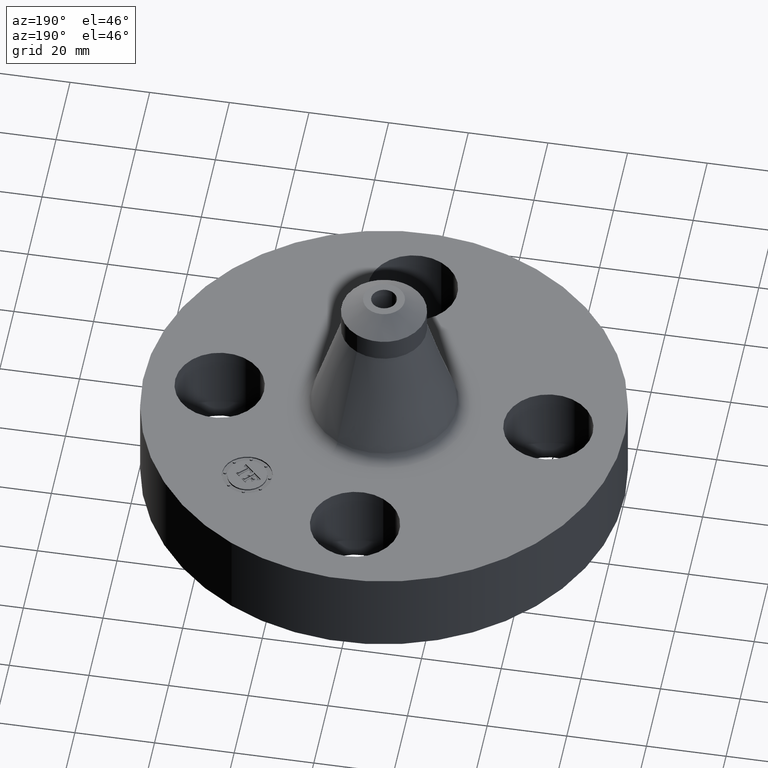
[diagram: clean part render]
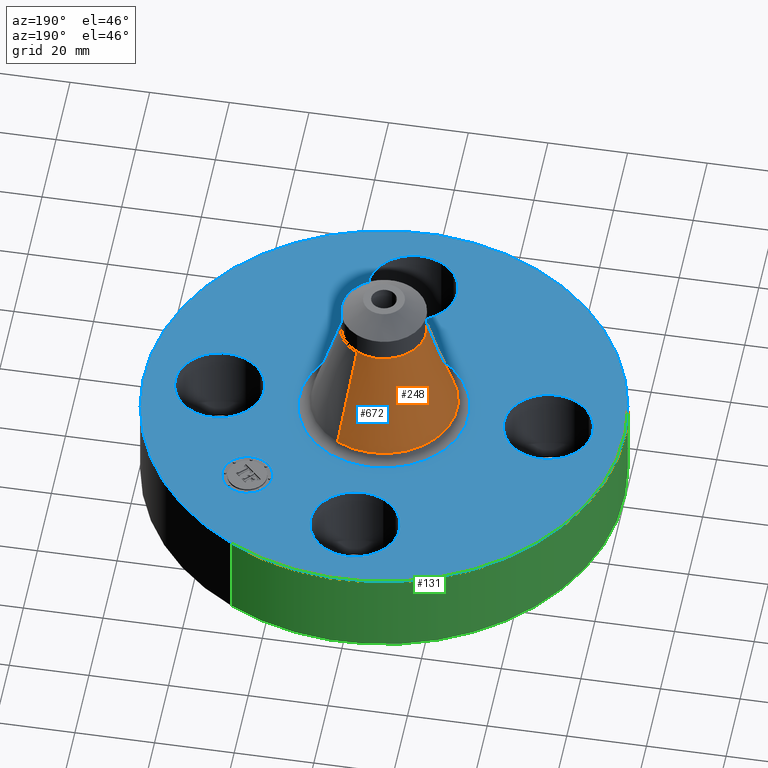
[diagram: same view with three faces highlighted in distinct colors, each labeled with its STEP entity id]
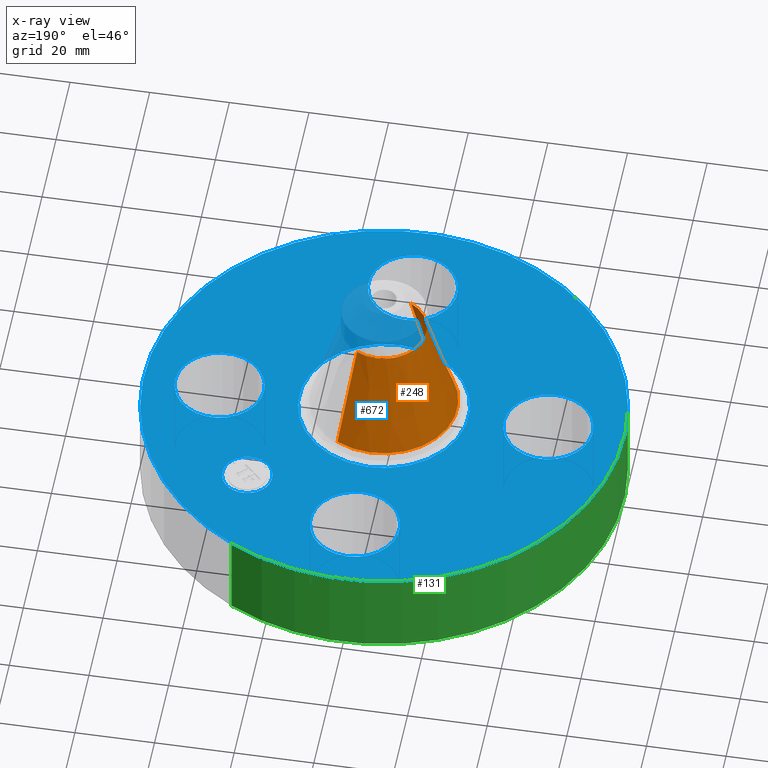
[diagram: x-ray of the same camera — body ghosted, the three highlighted faces saturated]
A machine part, auxiliary view with three faces highlighted in distinct colors.
The next image is the same camera in x-ray (body ghosted, the three faces saturated) — at least one of them is partly hidden behind the body in this view.
Their STEP definitions:

[orange] entity #248 — the highlighted conical surface has half-angle 16.719 deg.
#196=AXIS2_PLACEMENT_3D('Circle Axis2P3D',#194,#195,$) ;
#209=AXIS2_PLACEMENT_3D('Cone Axis2P3D',#206,#207,#208) ;
#239=AXIS2_PLACEMENT_3D('Circle Axis2P3D',#237,#238,$) ;
#167=CARTESIAN_POINT('Vertex',(0.347259427969,0.635654119147,0.965478086067)) ;
#174=CARTESIAN_POINT('Vertex',(-0.347259427969,-0.635654119147,0.965478086067)) ;
#194=CARTESIAN_POINT('Axis2P3D Location',(0.,0.,0.965478086067)) ;
#206=CARTESIAN_POINT('Axis2P3D Location',(0.,0.,1.97860484097)) ;
#211=CARTESIAN_POINT('Line Origine',(0.274309077092,0.502119397571,1.47204146352)) ;
#215=CARTESIAN_POINT('Vertex',(0.201358726215,0.368584675995,1.97860484097)) ;
#222=CARTESIAN_POINT('Vertex',(-0.201358726215,-0.368584675995,1.97860484097)) ;
#225=CARTESIAN_POINT('Line Origine',(-0.274309077092,-0.502119397571,1.47204146352)) ;
#237=CARTESIAN_POINT('Axis2P3D Location',(0.,0.,1.97860484097)) ;
#195=DIRECTION('Axis2P3D Direction',(0.,0.,-0.0393700787402)) ;
#207=DIRECTION('Axis2P3D Direction',(0.,0.,-0.0393700787402)) ;
#208=DIRECTION('Axis2P3D XDirection',(-0.0188750212049,-0.0345504945626,0.)) ;
#212=DIRECTION('Vector Direction',(0.00543001547996,0.00993957666477,-0.0377057402476)) ;
#226=DIRECTION('Vector Direction',(-0.00543001547996,-0.00993957666477,-0.0377057402476)) ;
#238=DIRECTION('Axis2P3D Direction',(0.,0.,-0.0393700787402)) ;
#213=VECTOR('Line Direction',#212,0.0393700787402) ;
#227=VECTOR('Line Direction',#226,0.0393700787402) ;
#243=ORIENTED_EDGE('',*,*,#198,.F.) ;
#244=ORIENTED_EDGE('',*,*,#229,.T.) ;
#245=ORIENTED_EDGE('',*,*,#241,.T.) ;
#246=ORIENTED_EDGE('',*,*,#217,.F.) ;
#248=ADVANCED_FACE('PartBody',(#247),#210,.T.) ;
#197=CIRCLE('generated circle',#196,0.724324008646) ;
#240=CIRCLE('generated circle',#239,0.420000000002) ;
#210=CONICAL_SURFACE('Cone',#209,0.420000000002,0.291806281787) ;
#198=EDGE_CURVE('',#175,#168,#197,.T.) ;
#217=EDGE_CURVE('',#168,#216,#214,.F.) ;
#229=EDGE_CURVE('',#175,#223,#228,.F.) ;
#241=EDGE_CURVE('',#223,#216,#240,.T.) ;
#242=EDGE_LOOP('',(#243,#244,#245,#246)) ;
#247=FACE_OUTER_BOUND('',#242,.T.) ;
#214=LINE('Line',#211,#213) ;
#228=LINE('Line',#225,#227) ;
#168=VERTEX_POINT('',#167) ;
#175=VERTEX_POINT('',#174) ;
#216=VERTEX_POINT('',#215) ;
#223=VERTEX_POINT('',#222) ;

[blue] entity #672 — the highlighted planar face has unit normal (0, 0, -1).
#65=AXIS2_PLACEMENT_3D('Circle Axis2P3D',#63,#64,$) ;
#82=AXIS2_PLACEMENT_3D('Circle Axis2P3D',#80,#81,$) ;
#115=AXIS2_PLACEMENT_3D('Circle Axis2P3D',#113,#114,$) ;
#139=AXIS2_PLACEMENT_3D('Circle Axis2P3D',#137,#138,$) ;
#156=AXIS2_PLACEMENT_3D('Circle Axis2P3D',#154,#155,$) ;
#191=AXIS2_PLACEMENT_3D('Circle Axis2P3D',#189,#190,$) ;
#517=AXIS2_PLACEMENT_3D('Circle Axis2P3D',#515,#516,$) ;
#529=AXIS2_PLACEMENT_3D('Circle Axis2P3D',#527,#528,$) ;
#560=AXIS2_PLACEMENT_3D('Circle Axis2P3D',#558,#559,$) ;
#572=AXIS2_PLACEMENT_3D('Circle Axis2P3D',#570,#571,$) ;
#603=AXIS2_PLACEMENT_3D('Circle Axis2P3D',#601,#602,$) ;
#615=AXIS2_PLACEMENT_3D('Circle Axis2P3D',#613,#614,$) ;
#628=AXIS2_PLACEMENT_3D('Plane Axis2P3D',#625,#626,#627) ;
#656=AXIS2_PLACEMENT_3D('Circle Axis2P3D',#654,#655,$) ;
#665=AXIS2_PLACEMENT_3D('Circle Axis2P3D',#663,#664,$) ;
#46=CARTESIAN_POINT('Vertex',(1.23886367277,0.210947236987,0.880000000004)) ;
#60=CARTESIAN_POINT('Vertex',(2.01113632724,-0.210947236987,0.880000000004)) ;
#63=CARTESIAN_POINT('Axis2P3D Location',(1.62500000001,0.,0.880000000004)) ;
#80=CARTESIAN_POINT('Axis2P3D Location',(1.62500000001,0.,0.880000000004)) ;
#110=CARTESIAN_POINT('Vertex',(-1.13863565419,-2.0842585845,0.880000000004)) ;
#113=CARTESIAN_POINT('Axis2P3D Location',(0.,0.,0.880000000004)) ;
#117=CARTESIAN_POINT('Vertex',(1.13863565419,2.0842585845,0.880000000004)) ;
#137=CARTESIAN_POINT('Axis2P3D Location',(0.,0.,0.880000000004)) ;
#154=CARTESIAN_POINT('Axis2P3D Location',(0.,0.,0.880000000004)) ;
#158=CARTESIAN_POINT('Vertex',(0.402358413001,0.736512134726,0.880000000004)) ;
#160=CARTESIAN_POINT('Vertex',(-0.402358413001,-0.736512134726,0.880000000004)) ;
#189=CARTESIAN_POINT('Axis2P3D Location',(0.,0.,0.880000000004)) ;
#505=CARTESIAN_POINT('Vertex',(-0.210947236987,1.23886367277,0.880000000004)) ;
#512=CARTESIAN_POINT('Vertex',(0.210947236987,2.01113632724,0.880000000004)) ;
#515=CARTESIAN_POINT('Axis2P3D Location',(-2.98507657293E-016,1.62500000001,0.880000000004)) ;
#527=CARTESIAN_POINT('Axis2P3D Location',(-2.98507657293E-016,1.62500000001,0.880000000004)) ;
#548=CARTESIAN_POINT('Vertex',(-1.23886367277,-0.210947236987,0.880000000004)) ;
#555=CARTESIAN_POINT('Vertex',(-2.01113632724,0.210947236987,0.880000000004)) ;
#558=CARTESIAN_POINT('Axis2P3D Location',(-1.62500000001,-1.99005104862E-016,0.880000000004)) ;
#570=CARTESIAN_POINT('Axis2P3D Location',(-1.62500000001,-1.99005104862E-016,0.880000000004)) ;
#591=CARTESIAN_POINT('Vertex',(0.210947236987,-1.23886367277,0.880000000004)) ;
#598=CARTESIAN_POINT('Vertex',(-0.210947236987,-2.01113632724,0.880000000004)) ;
#601=CARTESIAN_POINT('Axis2P3D Location',(-1.8023868212E-016,-1.62500000001,0.880000000004)) ;
#613=CARTESIAN_POINT('Axis2P3D Location',(-1.8023868212E-016,-1.62500000001,0.880000000004)) ;
#625=CARTESIAN_POINT('Axis2P3D Location',(0.,2.37500000001,0.880000000004)) ;
#654=CARTESIAN_POINT('Axis2P3D Location',(1.14904851943,1.14904851943,0.880000000004)) ;
#658=CARTESIAN_POINT('Vertex',(0.974039591088,1.32405744778,0.880000000004)) ;
#660=CARTESIAN_POINT('Vertex',(1.32405744778,0.974039591088,0.880000000004)) ;
#663=CARTESIAN_POINT('Axis2P3D Location',(1.14904851943,1.14904851943,0.880000000004)) ;
#64=DIRECTION('Axis2P3D Direction',(0.,-0.,-0.0393700787402)) ;
#81=DIRECTION('Axis2P3D Direction',(0.,-0.,-0.0393700787402)) ;
#114=DIRECTION('Axis2P3D Direction',(0.,0.,-0.0393700787402)) ;
#138=DIRECTION('Axis2P3D Direction',(0.,0.,-0.0393700787402)) ;
#155=DIRECTION('Axis2P3D Direction',(0.,0.,-0.0393700787402)) ;
#190=DIRECTION('Axis2P3D Direction',(0.,0.,-0.0393700787402)) ;
#516=DIRECTION('Axis2P3D Direction',(0.,0.,-0.0393700787402)) ;
#528=DIRECTION('Axis2P3D Direction',(0.,0.,-0.0393700787402)) ;
#559=DIRECTION('Axis2P3D Direction',(-0.,0.,-0.0393700787402)) ;
#571=DIRECTION('Axis2P3D Direction',(-0.,0.,-0.0393700787402)) ;
#602=DIRECTION('Axis2P3D Direction',(0.,-0.,-0.0393700787402)) ;
#614=DIRECTION('Axis2P3D Direction',(0.,-0.,-0.0393700787402)) ;
#626=DIRECTION('Axis2P3D Direction',(0.,0.,-0.0393700787402)) ;
#627=DIRECTION('Axis2P3D XDirection',(0.0393700787402,0.,0.)) ;
#655=DIRECTION('Axis2P3D Direction',(0.,0.,-0.0393700787402)) ;
#664=DIRECTION('Axis2P3D Direction',(0.,0.,-0.0393700787402)) ;
#631=ORIENTED_EDGE('',*,*,#141,.F.) ;
#632=ORIENTED_EDGE('',*,*,#119,.F.) ;
#635=ORIENTED_EDGE('',*,*,#67,.T.) ;
#636=ORIENTED_EDGE('',*,*,#84,.T.) ;
#639=ORIENTED_EDGE('',*,*,#193,.T.) ;
#640=ORIENTED_EDGE('',*,*,#162,.T.) ;
#643=ORIENTED_EDGE('',*,*,#617,.T.) ;
#644=ORIENTED_EDGE('',*,*,#605,.T.) ;
#647=ORIENTED_EDGE('',*,*,#574,.T.) ;
#648=ORIENTED_EDGE('',*,*,#562,.T.) ;
#651=ORIENTED_EDGE('',*,*,#531,.T.) ;
#652=ORIENTED_EDGE('',*,*,#519,.T.) ;
#669=ORIENTED_EDGE('',*,*,#662,.T.) ;
#670=ORIENTED_EDGE('',*,*,#667,.T.) ;
#637=FACE_BOUND('',#634,.T.) ;
#641=FACE_BOUND('',#638,.T.) ;
#645=FACE_BOUND('',#642,.T.) ;
#649=FACE_BOUND('',#646,.T.) ;
#653=FACE_BOUND('',#650,.T.) ;
#671=FACE_BOUND('',#668,.T.) ;
#672=ADVANCED_FACE('PartBody',(#633,#637,#641,#645,#649,#653,#671),#629,.F.) ;
#66=CIRCLE('generated circle',#65,0.440000000002) ;
#83=CIRCLE('generated circle',#82,0.440000000002) ;
#116=CIRCLE('generated circle',#115,2.37500000001) ;
#140=CIRCLE('generated circle',#139,2.37500000001) ;
#157=CIRCLE('generated circle',#156,0.839251104922) ;
#192=CIRCLE('generated circle',#191,0.839251104922) ;
#518=CIRCLE('generated circle',#517,0.440000000002) ;
#530=CIRCLE('generated circle',#529,0.440000000002) ;
#561=CIRCLE('generated circle',#560,0.440000000002) ;
#573=CIRCLE('generated circle',#572,0.440000000002) ;
#604=CIRCLE('generated circle',#603,0.440000000002) ;
#616=CIRCLE('generated circle',#615,0.440000000002) ;
#657=CIRCLE('generated circle',#656,0.247500000001) ;
#666=CIRCLE('generated circle',#665,0.247500000001) ;
#67=EDGE_CURVE('',#47,#61,#66,.T.) ;
#84=EDGE_CURVE('',#61,#47,#83,.T.) ;
#119=EDGE_CURVE('',#111,#118,#116,.T.) ;
#141=EDGE_CURVE('',#118,#111,#140,.T.) ;
#162=EDGE_CURVE('',#159,#161,#157,.T.) ;
#193=EDGE_CURVE('',#161,#159,#192,.T.) ;
#519=EDGE_CURVE('',#506,#513,#518,.T.) ;
#531=EDGE_CURVE('',#513,#506,#530,.T.) ;
#562=EDGE_CURVE('',#549,#556,#561,.T.) ;
#574=EDGE_CURVE('',#556,#549,#573,.T.) ;
#605=EDGE_CURVE('',#592,#599,#604,.T.) ;
#617=EDGE_CURVE('',#599,#592,#616,.T.) ;
#662=EDGE_CURVE('',#659,#661,#657,.T.) ;
#667=EDGE_CURVE('',#661,#659,#666,.T.) ;
#630=EDGE_LOOP('',(#631,#632)) ;
#634=EDGE_LOOP('',(#635,#636)) ;
#638=EDGE_LOOP('',(#639,#640)) ;
#642=EDGE_LOOP('',(#643,#644)) ;
#646=EDGE_LOOP('',(#647,#648)) ;
#650=EDGE_LOOP('',(#651,#652)) ;
#668=EDGE_LOOP('',(#669,#670)) ;
#633=FACE_OUTER_BOUND('',#630,.T.) ;
#629=PLANE('',#628) ;
#47=VERTEX_POINT('',#46) ;
#61=VERTEX_POINT('',#60) ;
#111=VERTEX_POINT('',#110) ;
#118=VERTEX_POINT('',#117) ;
#159=VERTEX_POINT('',#158) ;
#161=VERTEX_POINT('',#160) ;
#506=VERTEX_POINT('',#505) ;
#513=VERTEX_POINT('',#512) ;
#549=VERTEX_POINT('',#548) ;
#556=VERTEX_POINT('',#555) ;
#592=VERTEX_POINT('',#591) ;
#599=VERTEX_POINT('',#598) ;
#659=VERTEX_POINT('',#658) ;
#661=VERTEX_POINT('',#660) ;

[green] entity #131 — the highlighted cylindrical surface (partial cylindrical patch) has radius 60.325 mm, axis along (0, 0, -1).
#95=AXIS2_PLACEMENT_3D('Cylinder Axis2P3D',#92,#93,#94) ;
#99=AXIS2_PLACEMENT_3D('Circle Axis2P3D',#97,#98,$) ;
#115=AXIS2_PLACEMENT_3D('Circle Axis2P3D',#113,#114,$) ;
#92=CARTESIAN_POINT('Axis2P3D Location',(0.,0.,1.19)) ;
#97=CARTESIAN_POINT('Axis2P3D Location',(0.,0.,1.39870617276E-016)) ;
#101=CARTESIAN_POINT('Vertex',(-1.13863565419,-2.0842585845,1.39870617276E-016)) ;
#103=CARTESIAN_POINT('Vertex',(1.13863565419,2.0842585845,1.39870617276E-016)) ;
#106=CARTESIAN_POINT('Line Origine',(-1.13863565419,-2.0842585845,0.440000000002)) ;
#110=CARTESIAN_POINT('Vertex',(-1.13863565419,-2.0842585845,0.880000000004)) ;
#113=CARTESIAN_POINT('Axis2P3D Location',(0.,0.,0.880000000004)) ;
#117=CARTESIAN_POINT('Vertex',(1.13863565419,2.0842585845,0.880000000004)) ;
#120=CARTESIAN_POINT('Line Origine',(1.13863565419,2.0842585845,0.440000000002)) ;
#93=DIRECTION('Axis2P3D Direction',(0.,0.,-0.0393700787402)) ;
#94=DIRECTION('Axis2P3D XDirection',(0.0188750212049,0.0345504945626,0.)) ;
#98=DIRECTION('Axis2P3D Direction',(0.,0.,-0.0393700787402)) ;
#107=DIRECTION('Vector Direction',(0.,0.,-0.0393700787402)) ;
#114=DIRECTION('Axis2P3D Direction',(0.,0.,-0.0393700787402)) ;
#121=DIRECTION('Vector Direction',(0.,0.,-0.0393700787402)) ;
#108=VECTOR('Line Direction',#107,0.0393700787402) ;
#122=VECTOR('Line Direction',#121,0.0393700787402) ;
#126=ORIENTED_EDGE('',*,*,#105,.F.) ;
#127=ORIENTED_EDGE('',*,*,#112,.T.) ;
#128=ORIENTED_EDGE('',*,*,#119,.T.) ;
#129=ORIENTED_EDGE('',*,*,#124,.F.) ;
#131=ADVANCED_FACE('PartBody',(#130),#96,.T.) ;
#100=CIRCLE('generated circle',#99,2.37500000001) ;
#116=CIRCLE('generated circle',#115,2.37500000001) ;
#96=CYLINDRICAL_SURFACE('generated cylinder',#95,2.37500000001) ;
#105=EDGE_CURVE('',#102,#104,#100,.T.) ;
#112=EDGE_CURVE('',#102,#111,#109,.F.) ;
#119=EDGE_CURVE('',#111,#118,#116,.T.) ;
#124=EDGE_CURVE('',#104,#118,#123,.F.) ;
#125=EDGE_LOOP('',(#126,#127,#128,#129)) ;
#130=FACE_OUTER_BOUND('',#125,.T.) ;
#109=LINE('Line',#106,#108) ;
#123=LINE('Line',#120,#122) ;
#102=VERTEX_POINT('',#101) ;
#104=VERTEX_POINT('',#103) ;
#111=VERTEX_POINT('',#110) ;
#118=VERTEX_POINT('',#117) ;